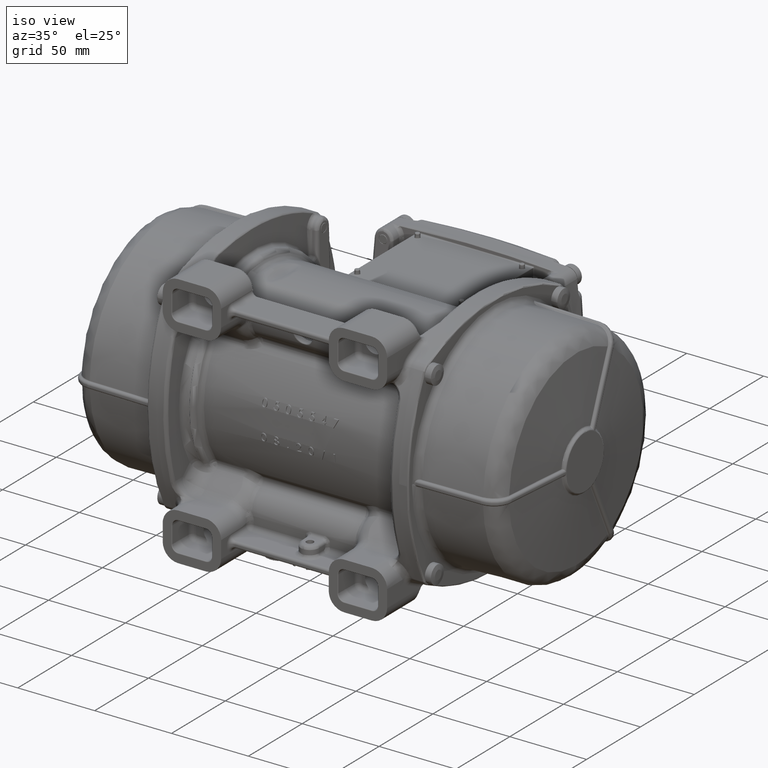
[diagram: clean part render]
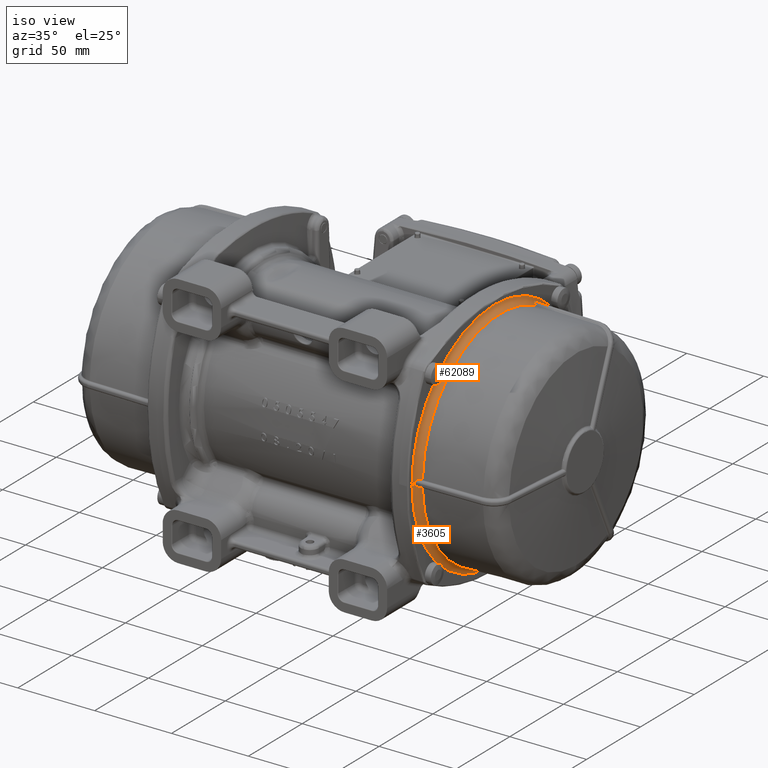
[diagram: same view with one multi-face feature highlighted, each face labeled with its STEP entity id]
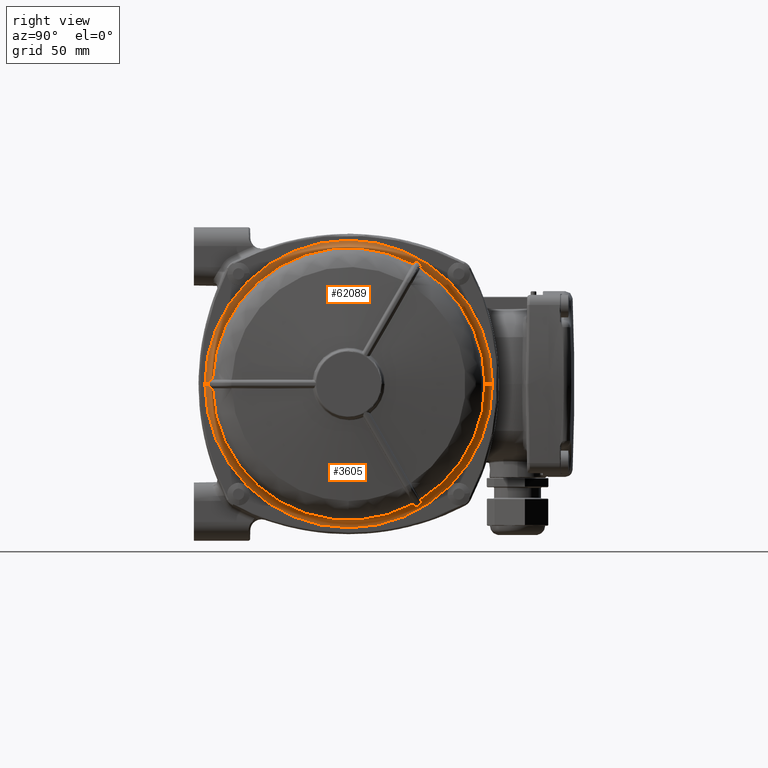
[diagram: same view with one multi-face feature highlighted, each face labeled with its STEP entity id]
A machine part, iso view. The highlighted faces form ONE feature: a constant-radius fillet chain: 2 tangent blend faces with common blend radius 4 mm. The faces share edges in the B-rep.
A second angle (right view) of the same feature is appended — it is thin or edge-on in the first view.
Their STEP definitions:
[1] entity #62089 (Torus):
#788 = ORIENTED_EDGE ( 'NONE', *, *, #13219, .T. ) ;
#2019 = CARTESIAN_POINT ( 'NONE',  ( 85.54031068511349645, -74.59321283339860997, 1.181093827396791918 ) ) ;
#3773 = VERTEX_POINT ( 'NONE', #96487 ) ;
#4464 = CARTESIAN_POINT ( 'NONE',  ( 88.93019037425089834, 72.61195883223420822, 1.387778780781445991E-14 ) ) ;
#4827 = CARTESIAN_POINT ( 'NONE',  ( 85.45192307940530441, -74.76441942005510555, 2.302976607247174756E-14 ) ) ;
#5345 = CARTESIAN_POINT ( 'NONE',  ( 86.59061754456028837, 34.76063709703314686, 64.65974295126230231 ) ) ;
#6475 = CARTESIAN_POINT ( 'NONE',  ( 88.93019037425089834, 38.34705198553269412, 61.66036141211730381 ) ) ;
#7166 = VERTEX_POINT ( 'NONE', #4464 ) ;
#8202 = AXIS2_PLACEMENT_3D ( 'NONE', #18782, #69890, #97542 ) ;
#8280 = VERTEX_POINT ( 'NONE', #9535 ) ;
#8362 = CARTESIAN_POINT ( 'NONE',  ( 85.46717957442579916, 38.05710878546275211, 64.31833299554070038 ) ) ;
#9419 = VERTEX_POINT ( 'NONE', #48928 ) ;
#9535 = CARTESIAN_POINT ( 'NONE',  ( 85.00000000000000000, -76.61134961285969780, 2.325997221598919644E-14 ) ) ;
#10050 = DIRECTION ( 'NONE',  ( -2.717179871770260207E-16, 1.000000000000000000, 1.071954934437682750E-46 ) ) ;
#11017 = CARTESIAN_POINT ( 'NONE',  ( 85.59537446579949460, -74.49464486511058681, 1.355616171486774046 ) ) ;
#11626 = CARTESIAN_POINT ( 'NONE',  ( 87.37041784185610993, -72.91353114235289468, 2.345052775279955259 ) ) ;
#11664 = CARTESIAN_POINT ( 'NONE',  ( 89.00000000000000000, 76.61134961285969780, 1.387778780781445991E-14 ) ) ;
#12531 = DIRECTION ( 'NONE',  ( -3.822452397924781266E-16, 1.000000000000000000, 0.000000000000000000 ) ) ;
#13063 = CARTESIAN_POINT ( 'NONE',  ( 86.04621875435559275, 35.24186031131674923, 64.96965813174018933 ) ) ;
#13219 = EDGE_CURVE ( 'NONE', #7166, #35735, #109379, .T. ) ;
#13929 = B_SPLINE_CURVE_WITH_KNOTS ( 'NONE', 3,
 ( #53221, #14938, #73784, #83402, #111085, #34678, #93722, #13063, #123252, #53855, #93092, #5345, #51974, #122645, #23280, #54487, #122015, #92448, #44868, #25123 ),
 .UNSPECIFIED., .F., .F.,
 ( 4, 2, 2, 2, 2, 2, 2, 2, 2, 4 ),
 ( 0.000000000000000000, 0.1249999999999992090, 0.2499999999999995004, 0.3749999999999997224, 0.4374999999999993894, 0.5000000000000000000, 0.6249999999999992228, 0.7500000000000000000, 0.8749999999999998890, 1.000000000000000000 ),
 .UNSPECIFIED. ) ;
#13978 = AXIS2_PLACEMENT_3D ( 'NONE', #41812, #50829, #12531 ) ;
#14837 = EDGE_LOOP ( 'NONE', ( #124923, #80293, #93801, #30732, #95787, #99473, #78329, #97812, #788, #114442 ) ) ;
#14938 = CARTESIAN_POINT ( 'NONE',  ( 85.45063173952070201, 36.86125945521019531, 65.04904597303149671 ) ) ;
#15095 = AXIS2_PLACEMENT_3D ( 'NONE', #112355, #52613, #23925 ) ;
#16689 = CARTESIAN_POINT ( 'NONE',  ( 86.25596951982329585, 38.65067285823155174, 62.74356332280700599 ) ) ;
#17278 = EDGE_CURVE ( 'NONE', #87437, #9419, #67006, .T. ) ;
#18782 = CARTESIAN_POINT ( 'NONE',  ( 89.00000000000000000, -76.61134961285969780, 2.325997221598919644E-14 ) ) ;
#19955 = CARTESIAN_POINT ( 'NONE',  ( 85.75484296127009998, -74.24978698512239816, 1.669175742224605186 ) ) ;
#21730 = DIRECTION ( 'NONE',  ( -1.000000000000000000, -3.622906495693680277E-16, -1.476613291110690061E-30 ) ) ;
#23280 = CARTESIAN_POINT ( 'NONE',  ( 87.36830424349909663, 34.42645495632795161, 64.31819871353130225 ) ) ;
#23481 = VERTEX_POINT ( 'NONE', #102917 ) ;
#23925 = DIRECTION ( 'NONE',  ( -3.822452397924781266E-16, 1.000000000000000000, 0.000000000000000000 ) ) ;
#25120 = CARTESIAN_POINT ( 'NONE',  ( 88.93019037425089834, -72.57296538218960791, 2.379340473655819910 ) ) ;
#25123 = CARTESIAN_POINT ( 'NONE',  ( 88.93019037425089834, 34.22591339665505217, 64.03970188577349631 ) ) ;
#26260 = CARTESIAN_POINT ( 'NONE',  ( 88.01024244448758793, 38.39497240217269791, 61.74483128115669928 ) ) ;
#27306 = CARTESIAN_POINT ( 'NONE',  ( 85.45128309602570482, 37.03694861070295019, 64.94741569840719819 ) ) ;
#29396 = CARTESIAN_POINT ( 'NONE',  ( 85.45128309602570482, 37.72763759961550534, 64.54864622473230895 ) ) ;
#29484 = AXIS2_PLACEMENT_3D ( 'NONE', #109569, #21730, #100561 ) ;
#30040 = CARTESIAN_POINT ( 'NONE',  ( 85.59537446580029041, 38.42132047484324886, 63.83644681334120463 ) ) ;
#30132 = CARTESIAN_POINT ( 'NONE',  ( 88.01024244449268963, -72.67007864295008801, 2.378605837305444837 ) ) ;
#30713 = CIRCLE ( 'NONE', #8202, 4.000000000000003553 ) ;
#30732 = ORIENTED_EDGE ( 'NONE', *, *, #91991, .F. ) ;
#30753 = CARTESIAN_POINT ( 'NONE',  ( 85.85612652324500971, -74.10900299276519831, 1.800925414603504970 ) ) ;
#33559 = CARTESIAN_POINT ( 'NONE',  ( 85.45192296663660159, -74.76441937367380319, 0.1329228767825545998 ) ) ;
#34678 = CARTESIAN_POINT ( 'NONE',  ( 85.75655817790379842, 35.67573488169384888, 65.13599517350020562 ) ) ;
#35735 = VERTEX_POINT ( 'NONE', #47514 ) ;
#35795 = CARTESIAN_POINT ( 'NONE',  ( 87.37041784185859683, 38.48764084778265016, 61.97244386126529747 ) ) ;
#35894 = B_SPLINE_CURVE_WITH_KNOTS ( 'NONE', 3,
 ( #6475, #45377, #26260, #35795, #74934, #85132, #114090, #16689, #75569, #114731, #107001, #30040, #59444, #8362, #38294, #29396 ),
 .UNSPECIFIED., .F., .F.,
 ( 4, 2, 2, 2, 2, 2, 2, 4 ),
 ( 0.000000000000000000, 0.2499999999999995004, 0.3749999999999993894, 0.4999999999999992784, 0.6249999999999990008, 0.7499999999999996669, 0.8749999999999998890, 1.000000000000000000 ),
 .UNSPECIFIED. ) ;
#38294 = CARTESIAN_POINT ( 'NONE',  ( 85.45063286889939036, 37.90319167823264479, 64.44748578343930490 ) ) ;
#40927 = DIRECTION ( 'NONE',  ( 1.540743955509785179E-30, 4.012223912994415218E-46, -1.000000000000000000 ) ) ;
#41626 = EDGE_CURVE ( 'NONE', #80052, #8280, #30713, .T. ) ;
#41812 = CARTESIAN_POINT ( 'NONE',  ( 88.93019037425089834, 1.962950844421094664E-14, 1.387778780781445991E-14 ) ) ;
#43123 = CARTESIAN_POINT ( 'NONE',  ( 88.93019037425089834, 34.22591339665505217, 64.03970188577349631 ) ) ;
#44868 = CARTESIAN_POINT ( 'NONE',  ( 88.69868133353949702, 34.22791978964509241, 64.04321150049439382 ) ) ;
#45377 = CARTESIAN_POINT ( 'NONE',  ( 88.46589019148480304, 38.35113570058560128, 61.66736554212630494 ) ) ;
#47514 = CARTESIAN_POINT ( 'NONE',  ( 85.00000000000000000, 76.61134961285969780, 1.387778780781443940E-14 ) ) ;
#48928 = CARTESIAN_POINT ( 'NONE',  ( 85.45128309602570482, -74.76458621032038820, 0.3987694736745495128 ) ) ;
#49917 = CARTESIAN_POINT ( 'NONE',  ( 86.77179472264650428, -73.24664925063119369, 2.267999816683889946 ) ) ;
#50302 = AXIS2_PLACEMENT_3D ( 'NONE', #68208, #95897, #10050 ) ;
#50546 = CARTESIAN_POINT ( 'NONE',  ( 88.46589019148109401, -72.58107299423539871, 2.379375009625419590 ) ) ;
#50829 = DIRECTION ( 'NONE',  ( 1.000000000000000000, 3.822452397924785211E-16, 1.588961728866099835E-30 ) ) ;
#51974 = CARTESIAN_POINT ( 'NONE',  ( 86.77650690744658846, 34.65685234766084477, 64.56523060709248796 ) ) ;
#52099 = CARTESIAN_POINT ( 'NONE',  ( 85.45170967643268511, -74.76447498588990470, 0.2658457535650864956 ) ) ;
#52613 = DIRECTION ( 'NONE',  ( 1.000000000000000000, 3.822452397924785211E-16, 1.588961728866099835E-30 ) ) ;
#53221 = CARTESIAN_POINT ( 'NONE',  ( 85.45128309602570482, 37.03694861070295019, 64.94741569840719819 ) ) ;
#53855 = CARTESIAN_POINT ( 'NONE',  ( 86.26306736723140034, 35.01537766073264635, 64.84214601897051011 ) ) ;
#54487 = CARTESIAN_POINT ( 'NONE',  ( 87.79648479951509898, 34.32541520659709988, 64.18820940010400022 ) ) ;
#57574 = VERTEX_POINT ( 'NONE', #75598 ) ;
#57940 = FACE_OUTER_BOUND ( 'NONE', #14837, .T. ) ;
#59444 = CARTESIAN_POINT ( 'NONE',  ( 85.54031068511400804, 38.31946367547695331, 64.00907034992380318 ) ) ;
#62089 = ADVANCED_FACE ( 'NONE', ( #57940 ), #120004, .F. ) ;
#67006 = B_SPLINE_CURVE_WITH_KNOTS ( 'NONE', 3,
 ( #118006, #50546, #30132, #11626, #108388, #49917, #118654, #69192, #89700, #30753, #19955, #11017, #2019, #80087, #69815, #89073 ),
 .UNSPECIFIED., .F., .F.,
 ( 4, 2, 2, 2, 2, 2, 2, 4 ),
 ( 0.000000000000000000, 0.2499999999999992784, 0.3750000000000000555, 0.4999999999999997224, 0.6249999999999993339, 0.7500000000000001110, 0.8750000000000000000, 1.000000000000000000 ),
 .UNSPECIFIED. ) ;
#67859 = EDGE_CURVE ( 'NONE', #9419, #80052, #70167, .T. ) ;
#68208 = CARTESIAN_POINT ( 'NONE',  ( 89.00000000000000000, 1.975799868335414805E-14, 1.387778780781445991E-14 ) ) ;
#69192 = CARTESIAN_POINT ( 'NONE',  ( 86.25596951982400640, -73.66285619062360013, 2.100682907187494841 ) ) ;
#69815 = CARTESIAN_POINT ( 'NONE',  ( 85.45063286889839560, -74.76475573761321414, 0.6013839861413859955 ) ) ;
#69840 = DIRECTION ( 'NONE',  ( -1.000000000000000000, 0.000000000000000000, -1.540743955509787281E-30 ) ) ;
#69890 = DIRECTION ( 'NONE',  ( -1.509889147437400156E-30, 1.224646799147350002E-16, 1.000000000000000000 ) ) ;
#70167 = B_SPLINE_CURVE_WITH_KNOTS ( 'NONE', 3,
 ( #111828, #52099, #33559, #4827 ),
 .UNSPECIFIED., .F., .F.,
 ( 4, 4 ),
 ( 0.000000000000000000, 0.4999999999994419464 ),
 .UNSPECIFIED. ) ;
#73784 = CARTESIAN_POINT ( 'NONE',  ( 85.46733447077130563, 36.67123970012889345, 65.11809171745400704 ) ) ;
#74934 = CARTESIAN_POINT ( 'NONE',  ( 87.16134200556071221, 38.52302729632729950, 62.06884002200879991 ) ) ;
#75569 = CARTESIAN_POINT ( 'NONE',  ( 86.10895905677730866, 38.65451602502764672, 62.91442035823050105 ) ) ;
#75598 = CARTESIAN_POINT ( 'NONE',  ( 85.45128309602570482, 37.03694861070295019, 64.94741569840719819 ) ) ;
#76131 = CARTESIAN_POINT ( 'NONE',  ( 85.45192307940530441, -74.76441942005510555, 2.302976607247174756E-14 ) ) ;
#78329 = ORIENTED_EDGE ( 'NONE', *, *, #97036, .F. ) ;
#80052 = VERTEX_POINT ( 'NONE', #76131 ) ;
#80087 = CARTESIAN_POINT ( 'NONE',  ( 85.46717957442629654, -74.72986469593560344, 0.7992565050291510209 ) ) ;
#80293 = ORIENTED_EDGE ( 'NONE', *, *, #67859, .F. ) ;
#82717 = AXIS2_PLACEMENT_3D ( 'NONE', #11664, #40927, #69840 ) ;
#83402 = CARTESIAN_POINT ( 'NONE',  ( 85.54087077167639563, 36.27137095579855242, 65.19036809214310324 ) ) ;
#85132 = CARTESIAN_POINT ( 'NONE',  ( 86.77179472264700166, 38.58747008234205111, 62.29945908479290040 ) ) ;
#85458 = CIRCLE ( 'NONE', #13978, 72.61195883223420822 ) ;
#87437 = VERTEX_POINT ( 'NONE', #25120 ) ;
#88861 = EDGE_CURVE ( 'NONE', #57574, #121141, #13929, .T. ) ;
#89073 = CARTESIAN_POINT ( 'NONE',  ( 85.45128309602570482, -74.76458621032038820, 0.3987694736745495128 ) ) ;
#89700 = CARTESIAN_POINT ( 'NONE',  ( 86.10895905677681128, -73.81274430711489742, 2.018582669551840070 ) ) ;
#91991 = EDGE_CURVE ( 'NONE', #121141, #87437, #121544, .T. ) ;
#92448 = CARTESIAN_POINT ( 'NONE',  ( 88.47044640461550102, 34.24061604980884965, 64.06357475747259400 ) ) ;
#93092 = CARTESIAN_POINT ( 'NONE',  ( 86.34141507297279361, 34.94781873900699765, 64.79710824009798387 ) ) ;
#93722 = CARTESIAN_POINT ( 'NONE',  ( 85.85744397975139464, 35.49290521303550605, 65.07998451270259466 ) ) ;
#93801 = ORIENTED_EDGE ( 'NONE', *, *, #17278, .F. ) ;
#95787 = ORIENTED_EDGE ( 'NONE', *, *, #88861, .F. ) ;
#95897 = DIRECTION ( 'NONE',  ( 1.000000000000000000, 2.717179871770260207E-16, 1.476613291110690061E-30 ) ) ;
#96487 = CARTESIAN_POINT ( 'NONE',  ( 88.93019037425089834, 38.34705198553269412, 61.66036141211730381 ) ) ;
#97036 = EDGE_CURVE ( 'NONE', #3773, #23481, #35894, .T. ) ;
#97153 = EDGE_CURVE ( 'NONE', #8280, #35735, #117584, .T. ) ;
#97542 = DIRECTION ( 'NONE',  ( 0.000000000000000000, -1.000000000000000000, 1.224646799147349509E-16 ) ) ;
#97812 = ORIENTED_EDGE ( 'NONE', *, *, #125991, .F. ) ;
#99473 = ORIENTED_EDGE ( 'NONE', *, *, #117174, .F. ) ;
#100561 = DIRECTION ( 'NONE',  ( -3.622906495693683235E-16, 1.000000000000000000, 0.000000000000000000 ) ) ;
#101172 = B_SPLINE_CURVE_WITH_KNOTS ( 'NONE', 3,
 ( #126127, #103625, #115154, #27306 ),
 .UNSPECIFIED., .F., .F.,
 ( 4, 4 ),
 ( 0.000000000000000000, 1.000000000000000000 ),
 .UNSPECIFIED. ) ;
#102917 = CARTESIAN_POINT ( 'NONE',  ( 85.45128309602570482, 37.72763759961550534, 64.54864622473230895 ) ) ;
#103625 = CARTESIAN_POINT ( 'NONE',  ( 85.45213625683490477, 37.49729573842844843, 64.68137729848540118 ) ) ;
#107001 = CARTESIAN_POINT ( 'NONE',  ( 85.75484296126930417, 38.57044208870784985, 63.46761388358880396 ) ) ;
#108388 = CARTESIAN_POINT ( 'NONE',  ( 87.16134200556120959, -73.01470589065520755, 2.327500258297654945 ) ) ;
#109379 = CIRCLE ( 'NONE', #82717, 4.000000000000003553 ) ;
#109569 = CARTESIAN_POINT ( 'NONE',  ( 85.00000000000000000, 1.867112673464604830E-14, 1.387778780781443940E-14 ) ) ;
#111085 = CARTESIAN_POINT ( 'NONE',  ( 85.59591130453469532, 36.07137927097890895, 65.19207406418119888 ) ) ;
#111828 = CARTESIAN_POINT ( 'NONE',  ( 85.45128309602570482, -74.76458621032038820, 0.3987694736745495128 ) ) ;
#112355 = CARTESIAN_POINT ( 'NONE',  ( 88.93019037425089834, 1.962950844421094664E-14, 1.387778780781445991E-14 ) ) ;
#114090 = CARTESIAN_POINT ( 'NONE',  ( 86.59039103685161365, 38.61674276550404272, 62.43349827092779947 ) ) ;
#114442 = ORIENTED_EDGE ( 'NONE', *, *, #97153, .F. ) ;
#114731 = CARTESIAN_POINT ( 'NONE',  ( 85.85612652324451233, 38.61414865574975153, 63.27981653357099390 ) ) ;
#115154 = CARTESIAN_POINT ( 'NONE',  ( 85.45213625683258840, 37.26706802304045141, 64.81429933194459636 ) ) ;
#117174 = EDGE_CURVE ( 'NONE', #23481, #57574, #101172, .T. ) ;
#117584 = CIRCLE ( 'NONE', #29484, 76.61134961285969780 ) ;
#118006 = CARTESIAN_POINT ( 'NONE',  ( 88.93019037425089834, -72.57296538218960791, 2.379340473655819910 ) ) ;
#118654 = CARTESIAN_POINT ( 'NONE',  ( 86.59039103685100258, -73.37736693250781173, 2.226331110872215024 ) ) ;
#120004 = TOROIDAL_SURFACE ( 'NONE', #50302, 76.61134961285969780, 4.000000000000000000 ) ;
#121141 = VERTEX_POINT ( 'NONE', #43123 ) ;
#121544 = CIRCLE ( 'NONE', #15095, 72.61195883223420822 ) ;
#122015 = CARTESIAN_POINT ( 'NONE',  ( 88.02044096530059392, 34.28908225563619538, 64.13568256104579746 ) ) ;
#122645 = CARTESIAN_POINT ( 'NONE',  ( 87.16414054357488794, 34.49078178222549695, 64.39527239517620671 ) ) ;
#123252 = CARTESIAN_POINT ( 'NONE',  ( 86.11574146044439715, 35.16198827718180553, 64.92825818252090642 ) ) ;
#124923 = ORIENTED_EDGE ( 'NONE', *, *, #41626, .F. ) ;
#125991 = EDGE_CURVE ( 'NONE', #7166, #3773, #85458, .T. ) ;
#126127 = CARTESIAN_POINT ( 'NONE',  ( 85.45128309602570482, 37.72763759961550534, 64.54864622473230895 ) ) ;
[2] entity #3605 (Torus):
#455 = VERTEX_POINT ( 'NONE', #80425 ) ;
#464 = B_SPLINE_CURVE_WITH_KNOTS ( 'NONE', 3,
 ( #26680, #75351, #64431, #103615 ),
 .UNSPECIFIED., .F., .F.,
 ( 4, 4 ),
 ( 0.4999999999994419464, 1.000000000000000000 ),
 .UNSPECIFIED. ) ;
#2135 = FACE_OUTER_BOUND ( 'NONE', #114271, .T. ) ;
#2562 = CARTESIAN_POINT ( 'NONE',  ( 86.04621875435600487, 38.64444426161814761, -63.00517537209280050 ) ) ;
#3197 = CARTESIAN_POINT ( 'NONE',  ( 85.54087077167659459, 38.32082937195379202, -64.00711272388238626 ) ) ;
#3605 = ADVANCED_FACE ( 'NONE', ( #2135 ), #83221, .F. ) ;
#3868 = CARTESIAN_POINT ( 'NONE',  ( 85.45128309602839067, 37.03694861070195543, -64.94741569840171280 ) ) ;
#4083 = CARTESIAN_POINT ( 'NONE',  ( 86.26306736723179824, -73.66263451869440360, -2.096866432184180340 ) ) ;
#4464 = CARTESIAN_POINT ( 'NONE',  ( 88.93019037425089834, 72.61195883223420822, 1.387778780781445991E-14 ) ) ;
#4701 = CARTESIAN_POINT ( 'NONE',  ( 87.79648479951158890, -72.75132756722500460, -2.367423135688604852 ) ) ;
#5251 = EDGE_CURVE ( 'NONE', #16479, #101528, #120919, .T. ) ;
#5335 = CARTESIAN_POINT ( 'NONE',  ( 85.75655817790369895, -74.24729396187889563, -1.671904880523185088 ) ) ;
#6981 = EDGE_CURVE ( 'NONE', #35735, #8280, #38590, .T. ) ;
#7166 = VERTEX_POINT ( 'NONE', #4464 ) ;
#8202 = AXIS2_PLACEMENT_3D ( 'NONE', #18782, #69890, #97542 ) ;
#8280 = VERTEX_POINT ( 'NONE', #9535 ) ;
#8308 = CARTESIAN_POINT ( 'NONE',  ( 85.00000000000000000, 1.867112673464604830E-14, 1.387778780781443940E-14 ) ) ;
#8989 = EDGE_CURVE ( 'NONE', #455, #16479, #52445, .T. ) ;
#9251 = CARTESIAN_POINT ( 'NONE',  ( 88.01024244448949219, 34.27510624078005463, -64.12343711846121153 ) ) ;
#9535 = CARTESIAN_POINT ( 'NONE',  ( 85.00000000000000000, -76.61134961285969780, 2.325997221598919644E-14 ) ) ;
#9890 = CARTESIAN_POINT ( 'NONE',  ( 85.59537446579899722, 36.07332439026765059, -65.19206298482929185 ) ) ;
#11664 = CARTESIAN_POINT ( 'NONE',  ( 89.00000000000000000, 76.61134961285969780, 1.387778780781445991E-14 ) ) ;
#11887 = EDGE_CURVE ( 'NONE', #80052, #58769, #464, .T. ) ;
#13219 = EDGE_CURVE ( 'NONE', #7166, #35735, #109379, .T. ) ;
#13408 = CARTESIAN_POINT ( 'NONE',  ( 87.36830424349858504, 38.48796653341030094, -61.97328391118620061 ) ) ;
#13548 = CARTESIAN_POINT ( 'NONE',  ( 88.93019037425089834, 34.22591339665670063, -64.03970188577260103 ) ) ;
#13878 = ORIENTED_EDGE ( 'NONE', *, *, #6981, .F. ) ;
#14929 = CARTESIAN_POINT ( 'NONE',  ( 85.85744397974990250, -74.10737247241790726, -1.802234687748274888 ) ) ;
#16479 = VERTEX_POINT ( 'NONE', #54930 ) ;
#18782 = CARTESIAN_POINT ( 'NONE',  ( 89.00000000000000000, -76.61134961285969780, 2.325997221598919644E-14 ) ) ;
#18851 = CARTESIAN_POINT ( 'NONE',  ( 85.54031068511380909, 36.27374915792159982, -65.19016417731990032 ) ) ;
#22575 = B_SPLINE_CURVE_WITH_KNOTS ( 'NONE', 3,
 ( #34669, #43613, #102719, #25752, #121371, #5335, #14929, #26391, #24501, #4083, #44254, #122636, #64771, #25117, #53847, #4701, #52584, #93083, #23902, #103346 ),
 .UNSPECIFIED., .F., .F.,
 ( 4, 2, 2, 2, 2, 2, 2, 2, 2, 4 ),
 ( 0.000000000000000000, 0.1249999999999996808, 0.2500000000000004441, 0.3750000000000001110, 0.4375000000000000000, 0.4999999999999998335, 0.6250000000000005551, 0.7500000000000002220, 0.8750000000000000000, 1.000000000000000000 ),
 .UNSPECIFIED. ) ;
#22971 = ORIENTED_EDGE ( 'NONE', *, *, #8989, .F. ) ;
#22996 = CARTESIAN_POINT ( 'NONE',  ( 88.93019037425089834, 38.34705198553429994, -61.66036141211630195 ) ) ;
#23902 = CARTESIAN_POINT ( 'NONE',  ( 88.69868133353838857, -72.57700799419041005, -2.379357693716825040 ) ) ;
#24501 = CARTESIAN_POINT ( 'NONE',  ( 86.11574146044409872, -73.81051514812909886, -2.012953995649529926 ) ) ;
#25117 = CARTESIAN_POINT ( 'NONE',  ( 87.16414054357339580, -73.01333266895488805, -2.327742977796174895 ) ) ;
#25218 = CARTESIAN_POINT ( 'NONE',  ( 88.93019037425089834, 38.34705198553429994, -61.66036141211630195 ) ) ;
#25752 = CARTESIAN_POINT ( 'NONE',  ( 85.54087077167629616, -74.59220032775378684, -1.183255368259420237 ) ) ;
#26391 = CARTESIAN_POINT ( 'NONE',  ( 86.04621875435638856, -73.88630457293470499, -1.964482759646789978 ) ) ;
#26680 = CARTESIAN_POINT ( 'NONE',  ( 85.45192307940530441, -74.76441942005510555, 2.302976607247174756E-14 ) ) ;
#27840 = AXIS2_PLACEMENT_3D ( 'NONE', #109927, #99664, #31037 ) ;
#28363 = ORIENTED_EDGE ( 'NONE', *, *, #116358, .F. ) ;
#29016 = CARTESIAN_POINT ( 'NONE',  ( 87.16134200556010114, 34.49167859432774463, -64.39634028030590684 ) ) ;
#30713 = CIRCLE ( 'NONE', #8202, 4.000000000000003553 ) ;
#31037 = DIRECTION ( 'NONE',  ( -3.822452397924781266E-16, 1.000000000000000000, 0.000000000000000000 ) ) ;
#33153 = CARTESIAN_POINT ( 'NONE',  ( 86.77650690745008433, 38.58670373311040436, -62.29632985182560390 ) ) ;
#34669 = CARTESIAN_POINT ( 'NONE',  ( 85.45128309602570482, -74.76458621032038820, -0.3987694736753750191 ) ) ;
#35735 = VERTEX_POINT ( 'NONE', #47514 ) ;
#37921 = CARTESIAN_POINT ( 'NONE',  ( 85.85612652324529392, 35.49485433701510573, -65.08074194817289992 ) ) ;
#38160 = AXIS2_PLACEMENT_3D ( 'NONE', #83651, #63147, #121633 ) ;
#38590 = CIRCLE ( 'NONE', #112374, 76.61134961285969780 ) ;
#39021 = ORIENTED_EDGE ( 'NONE', *, *, #39727, .F. ) ;
#39096 = CIRCLE ( 'NONE', #63756, 72.61195883223420822 ) ;
#39561 = CARTESIAN_POINT ( 'NONE',  ( 85.45128309602570482, 37.72763759961720353, -64.54864622473129998 ) ) ;
#39727 = EDGE_CURVE ( 'NONE', #58769, #76537, #22575, .T. ) ;
#40004 = CIRCLE ( 'NONE', #27840, 72.61195883223420822 ) ;
#40927 = DIRECTION ( 'NONE',  ( 1.540743955509785179E-30, 4.012223912994415218E-46, -1.000000000000000000 ) ) ;
#41352 = DIRECTION ( 'NONE',  ( 1.000000000000000000, 3.822452397924785211E-16, 1.588961728866099835E-30 ) ) ;
#41626 = EDGE_CURVE ( 'NONE', #80052, #8280, #30713, .T. ) ;
#42060 = CARTESIAN_POINT ( 'NONE',  ( 86.26306736723140034, 38.64725685796200594, -62.74527958678589812 ) ) ;
#43613 = CARTESIAN_POINT ( 'NONE',  ( 85.45063173952199520, -74.76475603218969468, -0.6017358828131270654 ) ) ;
#44254 = CARTESIAN_POINT ( 'NONE',  ( 86.34141507297169937, -73.58985119719930879, -2.132855285214930063 ) ) ;
#44355 = VERTEX_POINT ( 'NONE', #13548 ) ;
#47514 = CARTESIAN_POINT ( 'NONE',  ( 85.00000000000000000, 76.61134961285969780, 1.387778780781443940E-14 ) ) ;
#47872 = DIRECTION ( 'NONE',  ( -3.622906495693683235E-16, 1.000000000000000000, 0.000000000000000000 ) ) ;
#48129 = CARTESIAN_POINT ( 'NONE',  ( 85.45213625684191072, 37.26706802303294808, -64.81429933192829651 ) ) ;
#48180 = CARTESIAN_POINT ( 'NONE',  ( 86.25596951982319638, 35.01218333239249603, -64.84424622999380006 ) ) ;
#51073 = CARTESIAN_POINT ( 'NONE',  ( 87.79648479951569584, 38.42591236062549598, -61.82078626441420255 ) ) ;
#52445 = B_SPLINE_CURVE_WITH_KNOTS ( 'NONE', 3,
 ( #3868, #48129, #96937, #111488 ),
 .UNSPECIFIED., .F., .F.,
 ( 4, 4 ),
 ( 0.000000000000000000, 1.000000000000000000 ),
 .UNSPECIFIED. ) ;
#52584 = CARTESIAN_POINT ( 'NONE',  ( 88.02044096529928652, -72.68767151473859656, -2.372624974686424526 ) ) ;
#53847 = CARTESIAN_POINT ( 'NONE',  ( 87.36830424350269197, -72.91442148973629855, -2.344914802345199778 ) ) ;
#54930 = CARTESIAN_POINT ( 'NONE',  ( 85.45128309602570482, 37.72763759961720353, -64.54864622473129998 ) ) ;
#58769 = VERTEX_POINT ( 'NONE', #80817 ) ;
#60695 = CARTESIAN_POINT ( 'NONE',  ( 85.59591130453570429, 38.42230262948810093, -63.83476783029989576 ) ) ;
#60926 = ORIENTED_EDGE ( 'NONE', *, *, #126715, .F. ) ;
#61967 = CARTESIAN_POINT ( 'NONE',  ( 86.59061754456070048, 38.61666144944695134, -62.43346625339400191 ) ) ;
#62532 = CARTESIAN_POINT ( 'NONE',  ( 88.93019037425089834, 1.962950844421094664E-14, 1.387778780781445991E-14 ) ) ;
#63147 = DIRECTION ( 'NONE',  ( 1.000000000000000000, 2.717179871770260207E-16, 1.476613291110690061E-30 ) ) ;
#63756 = AXIS2_PLACEMENT_3D ( 'NONE', #62532, #41352, #102975 ) ;
#64270 = CARTESIAN_POINT ( 'NONE',  ( 88.46589019148349564, 34.22993729365239801, -64.04674055175310343 ) ) ;
#64431 = CARTESIAN_POINT ( 'NONE',  ( 85.45170967643349513, -74.76447498588829887, -0.2658457535656330029 ) ) ;
#64771 = CARTESIAN_POINT ( 'NONE',  ( 86.77650690744809481, -73.24355608077230784, -2.268900755263300262 ) ) ;
#65506 = ORIENTED_EDGE ( 'NONE', *, *, #101241, .F. ) ;
#68048 = CARTESIAN_POINT ( 'NONE',  ( 85.45128309602839067, 37.03694861070195543, -64.94741569840171280 ) ) ;
#69840 = DIRECTION ( 'NONE',  ( -1.000000000000000000, 0.000000000000000000, -1.540743955509787281E-30 ) ) ;
#69890 = DIRECTION ( 'NONE',  ( -1.509889147437400156E-30, 1.224646799147350002E-16, 1.000000000000000000 ) ) ;
#70210 = ORIENTED_EDGE ( 'NONE', *, *, #13219, .F. ) ;
#70909 = ORIENTED_EDGE ( 'NONE', *, *, #11887, .F. ) ;
#71616 = CARTESIAN_POINT ( 'NONE',  ( 88.69868133353949702, 38.34908820454154466, -61.66385380677829886 ) ) ;
#72573 = B_SPLINE_CURVE_WITH_KNOTS ( 'NONE', 3,
 ( #95138, #64270, #9251, #77102, #29016, #107273, #96368, #48180, #77722, #37921, #87297, #9890, #18851, #96985, #116891, #68048 ),
 .UNSPECIFIED., .F., .F.,
 ( 4, 2, 2, 2, 2, 2, 2, 4 ),
 ( 0.000000000000000000, 0.2500000000000004441, 0.3750000000000008327, 0.5000000000000000000, 0.6250000000000002220, 0.7500000000000003331, 0.8750000000000001110, 1.000000000000000000 ),
 .UNSPECIFIED. ) ;
#75351 = CARTESIAN_POINT ( 'NONE',  ( 85.45192296663699949, -74.76441937367309265, -0.1329228767828049829 ) ) ;
#76131 = CARTESIAN_POINT ( 'NONE',  ( 85.45192307940530441, -74.76441942005510555, 2.302976607247174756E-14 ) ) ;
#76537 = VERTEX_POINT ( 'NONE', #113875 ) ;
#77102 = CARTESIAN_POINT ( 'NONE',  ( 87.37041784185760207, 34.42589029456860317, -64.31749663654490234 ) ) ;
#77722 = CARTESIAN_POINT ( 'NONE',  ( 86.10895905677639917, 35.15822828208705175, -64.93300302778270350 ) ) ;
#79368 = CARTESIAN_POINT ( 'NONE',  ( 85.85744397975059883, 38.61446725938120039, -63.27774982495380840 ) ) ;
#79994 = CARTESIAN_POINT ( 'NONE',  ( 86.11574146044439715, 38.64852687094674621, -62.91530418687070636 ) ) ;
#80052 = VERTEX_POINT ( 'NONE', #76131 ) ;
#80425 = CARTESIAN_POINT ( 'NONE',  ( 85.45128309602839067, 37.03694861070195543, -64.94741569840171280 ) ) ;
#80630 = CARTESIAN_POINT ( 'NONE',  ( 85.75655817790280366, 38.57155908018424384, -63.46409029297760185 ) ) ;
#80817 = CARTESIAN_POINT ( 'NONE',  ( 85.45128309602570482, -74.76458621032038820, -0.3987694736753750191 ) ) ;
#81252 = CARTESIAN_POINT ( 'NONE',  ( 88.47044640461540155, 38.36037517231105909, -61.68503071909949398 ) ) ;
#82717 = AXIS2_PLACEMENT_3D ( 'NONE', #11664, #40927, #69840 ) ;
#83221 = TOROIDAL_SURFACE ( 'NONE', #38160, 76.61134961285969780, 4.000000000000000000 ) ;
#83651 = CARTESIAN_POINT ( 'NONE',  ( 89.00000000000000000, 1.975799868335414805E-14, 1.387778780781445991E-14 ) ) ;
#86342 = DIRECTION ( 'NONE',  ( -1.000000000000000000, -3.622906495693680277E-16, -1.476613291110690061E-30 ) ) ;
#87297 = CARTESIAN_POINT ( 'NONE',  ( 85.75484296127051209, 35.67934489641364593, -65.13678962581100507 ) ) ;
#89614 = CARTESIAN_POINT ( 'NONE',  ( 88.02044096530069339, 38.39858925910089482, -61.76305758635869836 ) ) ;
#93083 = CARTESIAN_POINT ( 'NONE',  ( 88.47044640461690790, -72.60099122211890688, -2.378544038372605307 ) ) ;
#95138 = CARTESIAN_POINT ( 'NONE',  ( 88.93019037425089834, 34.22591339665670063, -64.03970188577260103 ) ) ;
#96368 = CARTESIAN_POINT ( 'NONE',  ( 86.59039103685169891, 34.76062416700274582, -64.65982938179949713 ) ) ;
#96937 = CARTESIAN_POINT ( 'NONE',  ( 85.45213625683661007, 37.49729573842869712, -64.68137729848130846 ) ) ;
#96985 = CARTESIAN_POINT ( 'NONE',  ( 85.46717957442599811, 36.67275591047235395, -65.11758950056950823 ) ) ;
#97542 = DIRECTION ( 'NONE',  ( 0.000000000000000000, -1.000000000000000000, 1.224646799147349509E-16 ) ) ;
#99664 = DIRECTION ( 'NONE',  ( 1.000000000000000000, 3.822452397924785211E-16, 1.588961728866099835E-30 ) ) ;
#99931 = CARTESIAN_POINT ( 'NONE',  ( 87.16414054357139207, 38.52255088672990269, -62.06752941738240281 ) ) ;
#101241 = EDGE_CURVE ( 'NONE', #76537, #44355, #40004, .T. ) ;
#101528 = VERTEX_POINT ( 'NONE', #25218 ) ;
#102719 = CARTESIAN_POINT ( 'NONE',  ( 85.46733447077140511, -74.72954152334450839, -0.8008206901471069949 ) ) ;
#102975 = DIRECTION ( 'NONE',  ( -3.822452397924781266E-16, 1.000000000000000000, 0.000000000000000000 ) ) ;
#103346 = CARTESIAN_POINT ( 'NONE',  ( 88.93019037425099782, -72.57296538218960791, -2.379340473656645027 ) ) ;
#103615 = CARTESIAN_POINT ( 'NONE',  ( 85.45128309602570482, -74.76458621032038820, -0.3987694736753750191 ) ) ;
#107273 = CARTESIAN_POINT ( 'NONE',  ( 86.77179472264749904, 34.65917916828879441, -64.56745890147630007 ) ) ;
#108305 = CARTESIAN_POINT ( 'NONE',  ( 85.46733447077099299, 38.05830182321654576, -64.31727102730700096 ) ) ;
#108482 = ORIENTED_EDGE ( 'NONE', *, *, #41626, .T. ) ;
#109379 = CIRCLE ( 'NONE', #82717, 4.000000000000003553 ) ;
#109927 = CARTESIAN_POINT ( 'NONE',  ( 88.93019037425089834, 1.962950844421094664E-14, 1.387778780781445991E-14 ) ) ;
#111488 = CARTESIAN_POINT ( 'NONE',  ( 85.45128309602570482, 37.72763759961720353, -64.54864622473129998 ) ) ;
#112374 = AXIS2_PLACEMENT_3D ( 'NONE', #8308, #86342, #47872 ) ;
#113875 = CARTESIAN_POINT ( 'NONE',  ( 88.93019037425099782, -72.57296538218960791, -2.379340473656645027 ) ) ;
#114271 = EDGE_LOOP ( 'NONE', ( #70909, #108482, #13878, #70210, #28363, #125307, #22971, #60926, #65506, #39021 ) ) ;
#116358 = EDGE_CURVE ( 'NONE', #101528, #7166, #39096, .T. ) ;
#116891 = CARTESIAN_POINT ( 'NONE',  ( 85.45063286890079723, 36.86156405937754954, -65.04886976957749312 ) ) ;
#117923 = CARTESIAN_POINT ( 'NONE',  ( 85.45063173952290470, 37.90349657697900199, -64.44731009021379009 ) ) ;
#119187 = CARTESIAN_POINT ( 'NONE',  ( 86.34141507297250939, 38.64203245819165033, -62.66425295488289748 ) ) ;
#120919 = B_SPLINE_CURVE_WITH_KNOTS ( 'NONE', 3,
 ( #39561, #117923, #108305, #3197, #60695, #80630, #79368, #2562, #79994, #42060, #119187, #61967, #33153, #99931, #13408, #51073, #89614, #81252, #71616, #22996 ),
 .UNSPECIFIED., .F., .F.,
 ( 4, 2, 2, 2, 2, 2, 2, 2, 2, 4 ),
 ( 0.000000000000000000, 0.1250000000000008882, 0.2500000000000000000, 0.3750000000000000000, 0.4375000000000000000, 0.5000000000000000000, 0.6250000000000000000, 0.7500000000000000000, 0.8750000000000000000, 1.000000000000000000 ),
 .UNSPECIFIED. ) ;
#121371 = CARTESIAN_POINT ( 'NONE',  ( 85.59591130453489427, -74.49368190046679672, -1.357306233879499890 ) ) ;
#121633 = DIRECTION ( 'NONE',  ( -2.717179871770260207E-16, 1.000000000000000000, 1.071954934437682750E-46 ) ) ;
#122636 = CARTESIAN_POINT ( 'NONE',  ( 86.59061754456250526, -73.37729854647969319, -2.226276697866899745 ) ) ;
#125307 = ORIENTED_EDGE ( 'NONE', *, *, #5251, .F. ) ;
#126715 = EDGE_CURVE ( 'NONE', #44355, #455, #72573, .T. ) ;